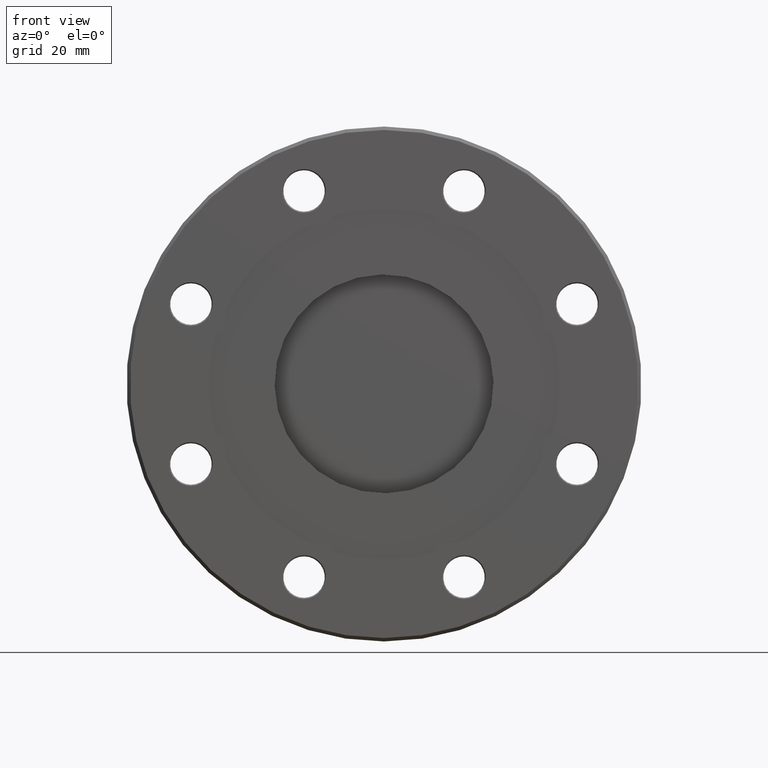
[diagram: clean part render]
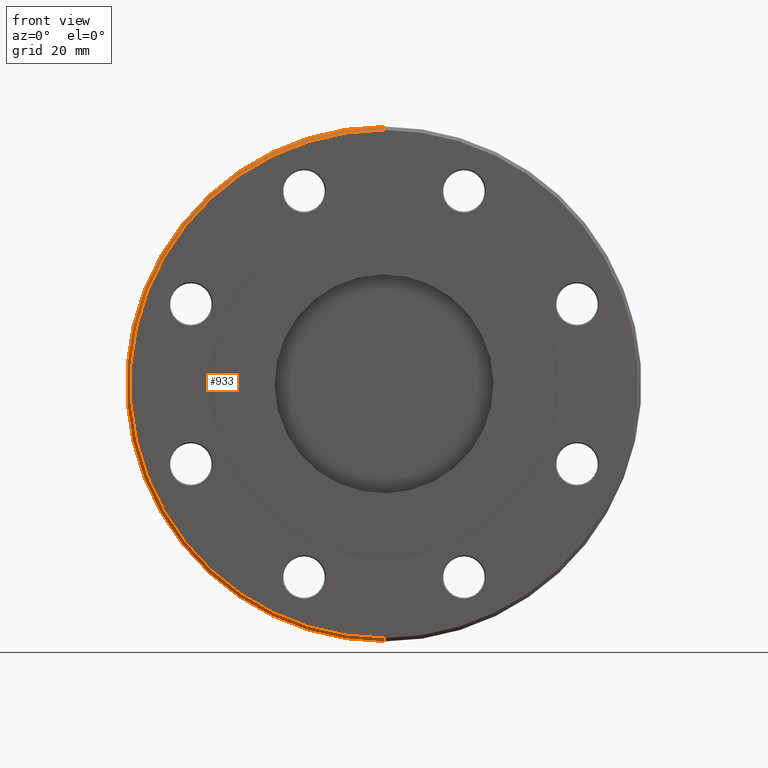
[diagram: same view with one face highlighted and labeled with its STEP entity id]
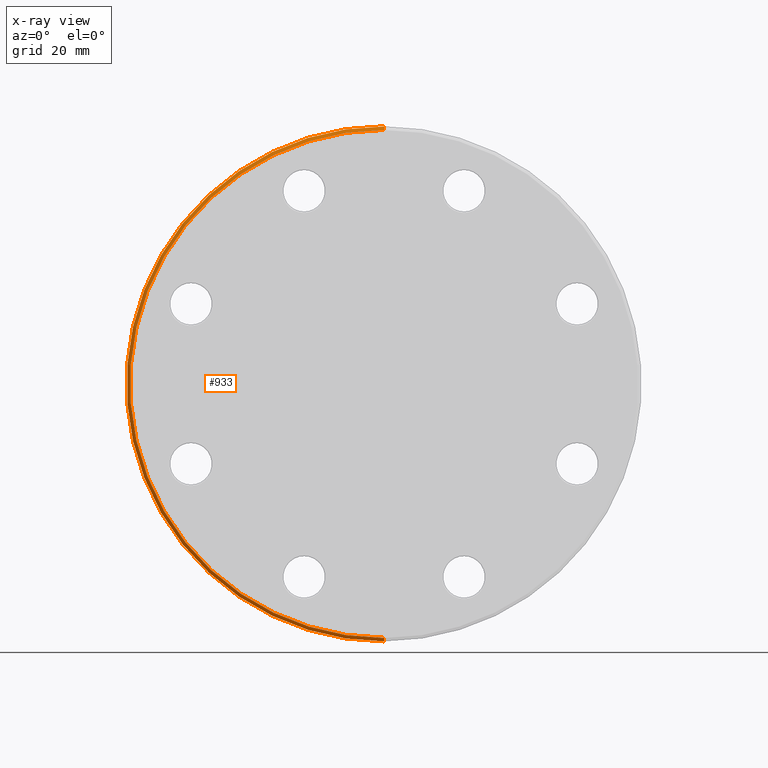
[diagram: x-ray of the same camera — body ghosted, the highlighted face saturated]
A machine part, front view. The second image highlights one B-rep face of the part: STEP entity #933.
The next image is the same camera in x-ray: the body ghosted, the highlighted face saturated — about 0% of this face is hidden behind the body in this view.
In plain terms, the highlighted conical surface has half-angle 45 deg.
Its self-contained STEP definition (entity closure, byte-faithful):
#158 = CARTESIAN_POINT ( 'NONE',  ( 0.000000000000000000, -0.6500000000000001332, 2.234999999999999876 ) ) ;
#171 = FACE_OUTER_BOUND ( 'NONE', #2509, .T. ) ;
#173 = CARTESIAN_POINT ( 'NONE',  ( 0.000000000000000000, -0.6799999999999999378, 2.204999999999999627 ) ) ;
#227 = CIRCLE ( 'NONE', #2560, 2.204999999999999627 ) ;
#340 = EDGE_CURVE ( 'NONE', #1609, #915, #1859, .T. ) ;
#451 = ORIENTED_EDGE ( 'NONE', *, *, #678, .T. ) ;
#473 = CARTESIAN_POINT ( 'NONE',  ( 0.000000000000000000, -0.6799999999999999378, 0.000000000000000000 ) ) ;
#476 = CIRCLE ( 'NONE', #2769, 2.234999999999999876 ) ;
#531 = VECTOR ( 'NONE', #2609, 39.37007874015748143 ) ;
#627 = DIRECTION ( 'NONE',  ( -0.000000000000000000, 1.000000000000000000, -0.000000000000000000 ) ) ;
#678 = EDGE_CURVE ( 'NONE', #1316, #1609, #227, .T. ) ;
#685 = AXIS2_PLACEMENT_3D ( 'NONE', #2929, #627, #2015 ) ;
#915 = VERTEX_POINT ( 'NONE', #158 ) ;
#933 = ADVANCED_FACE ( 'NONE', ( #171 ), #1023, .T. ) ;
#947 = EDGE_CURVE ( 'NONE', #2742, #915, #476, .T. ) ;
#1007 = ORIENTED_EDGE ( 'NONE', *, *, #340, .T. ) ;
#1023 = CONICAL_SURFACE ( 'NONE', #685, 2.234999999999999876, 0.7853981633974551624 ) ;
#1073 = DIRECTION ( 'NONE',  ( 0.000000000000000000, 0.000000000000000000, 1.000000000000000000 ) ) ;
#1316 = VERTEX_POINT ( 'NONE', #1747 ) ;
#1564 = CARTESIAN_POINT ( 'NONE',  ( 0.000000000000000000, -0.6500000000000001332, 0.000000000000000000 ) ) ;
#1609 = VERTEX_POINT ( 'NONE', #173 ) ;
#1694 = CARTESIAN_POINT ( 'NONE',  ( 2.737085596094334151E-16, -0.6500000000000001332, -2.234999999999999876 ) ) ;
#1740 = ORIENTED_EDGE ( 'NONE', *, *, #2410, .F. ) ;
#1747 = CARTESIAN_POINT ( 'NONE',  ( 2.718715894107124016E-16, -0.6799999999999999378, -2.204999999999999627 ) ) ;
#1788 = VECTOR ( 'NONE', #1904, 39.37007874015748143 ) ;
#1819 = ORIENTED_EDGE ( 'NONE', *, *, #947, .F. ) ;
#1841 = DIRECTION ( 'NONE',  ( -0.000000000000000000, 1.000000000000000000, -0.000000000000000000 ) ) ;
#1859 = LINE ( 'NONE', #2785, #1788 ) ;
#1904 = DIRECTION ( 'NONE',  ( 0.000000000000000000, 0.7071067811865426878, 0.7071067811865523467 ) ) ;
#1910 = LINE ( 'NONE', #1694, #531 ) ;
#2015 = DIRECTION ( 'NONE',  ( 0.000000000000000000, 0.000000000000000000, 1.000000000000000000 ) ) ;
#2305 = DIRECTION ( 'NONE',  ( 0.000000000000000000, 0.000000000000000000, 1.000000000000000000 ) ) ;
#2410 = EDGE_CURVE ( 'NONE', #1316, #2742, #1910, .T. ) ;
#2509 = EDGE_LOOP ( 'NONE', ( #1740, #451, #1007, #1819 ) ) ;
#2560 = AXIS2_PLACEMENT_3D ( 'NONE', #473, #1841, #2305 ) ;
#2609 = DIRECTION ( 'NONE',  ( 8.659560562354992023E-17, 0.7071067811865426878, -0.7071067811865523467 ) ) ;
#2742 = VERTEX_POINT ( 'NONE', #2860 ) ;
#2769 = AXIS2_PLACEMENT_3D ( 'NONE', #1564, #2894, #1073 ) ;
#2785 = CARTESIAN_POINT ( 'NONE',  ( 0.000000000000000000, -0.6500000000000001332, 2.234999999999999876 ) ) ;
#2860 = CARTESIAN_POINT ( 'NONE',  ( 2.737085596094334151E-16, -0.6500000000000001332, -2.234999999999999876 ) ) ;
#2894 = DIRECTION ( 'NONE',  ( -0.000000000000000000, 1.000000000000000000, -0.000000000000000000 ) ) ;
#2929 = CARTESIAN_POINT ( 'NONE',  ( 0.000000000000000000, -0.6500000000000001332, 0.000000000000000000 ) ) ;